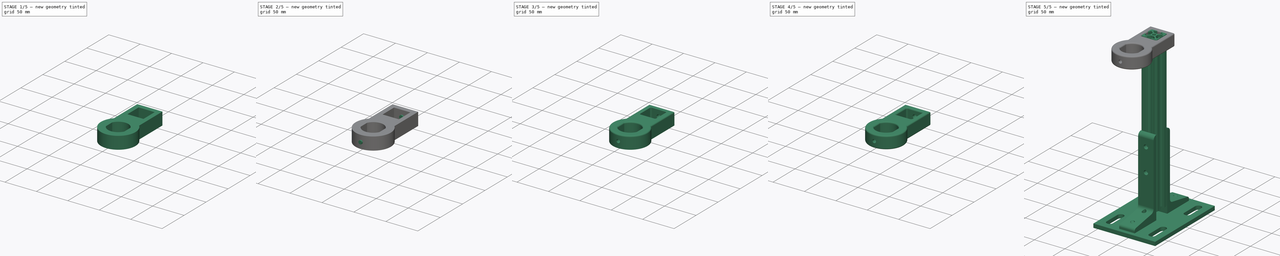
[diagram: build sequence overview — one tinted view per stage of 5, left to right]
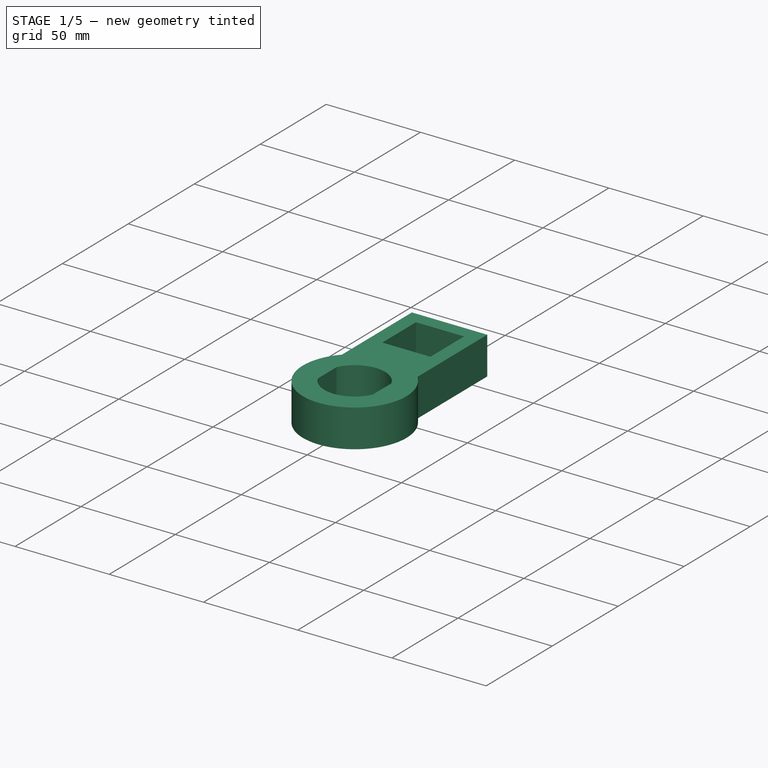
[diagram: stage 1 of 5 — iso view after this stage's code; geometry added in this stage tinted green]
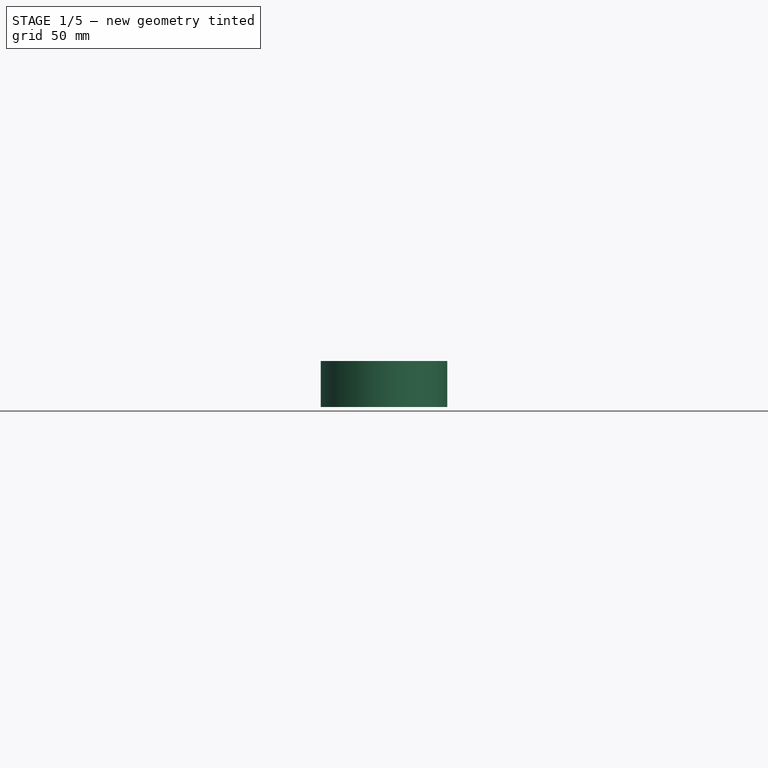
[diagram: stage 1 of 5 — front view after this stage's code; geometry added in this stage tinted green]
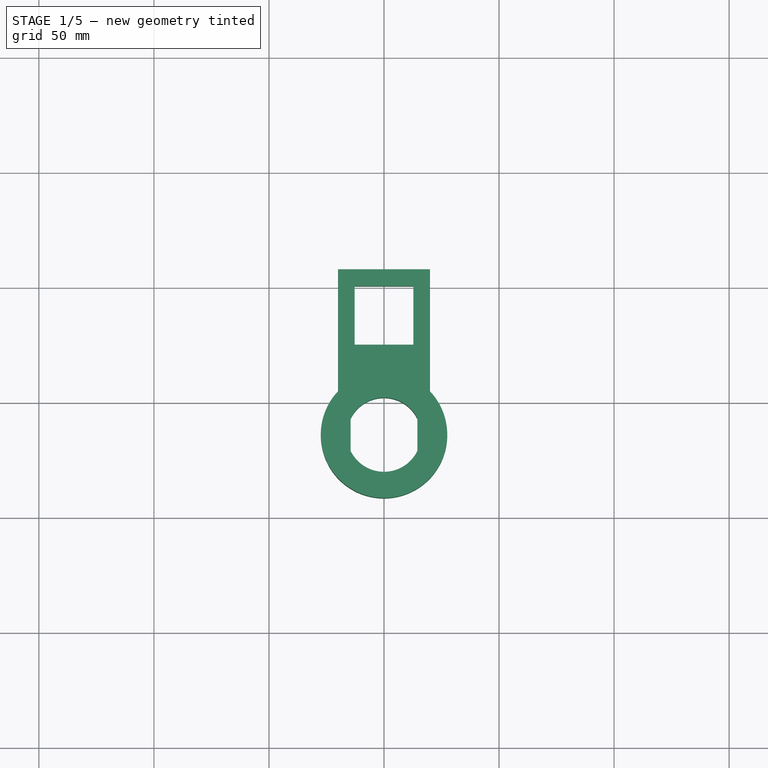
[diagram: stage 1 of 5 — top view after this stage's code; geometry added in this stage tinted green]
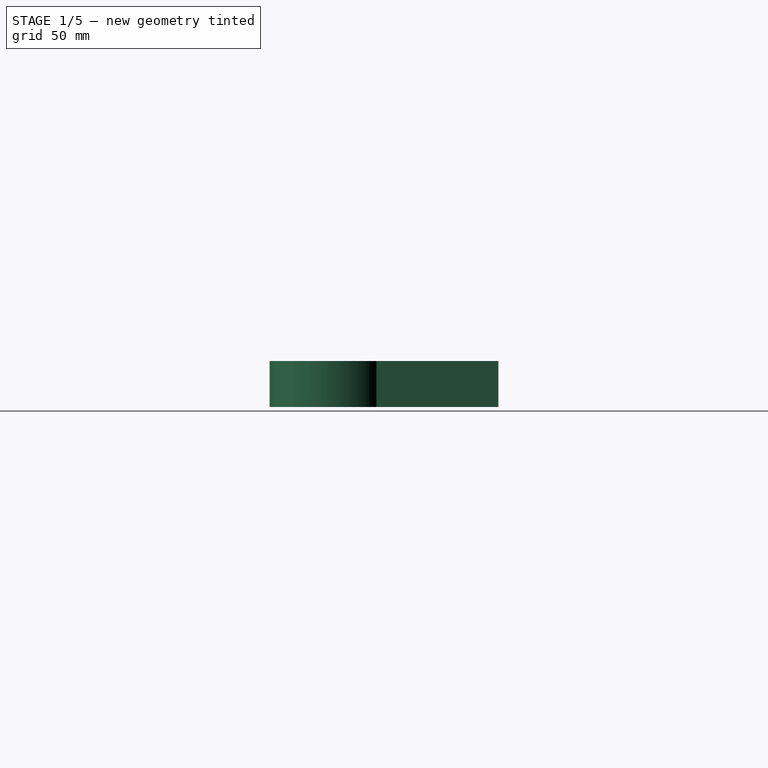
[diagram: stage 1 of 5 — right view after this stage's code; geometry added in this stage tinted green]
FCSTD DOCUMENT  (FreeCAD 0.20R29410 (Git))
Label: airMarHolderVertical
License: All rights reserved
LicenseURL: http://en.wikipedia.org/wiki/All_rights_reserved
objects: Part::Fillet×8, Part::MultiFuse×3, Part::Feature×3, Sketcher::SketchObject×2, Part::Extrusion×2, Part::Cylinder×2, Part::Cut×1
note: 21 computed .brp shape members not serialized (recipe doc carries the construction recipe); baked Part::Feature solids carry a one-line shape summary decoded from their .brp

FEATURE [Sketcher::SketchObject] Sketch004
  FullyConstrained = true
  Placement = pos=(0,0,23.8) rot=(0,0,1;0rad)
  sketch-geometry (5):
    g0: Circle CenterX=0 CenterY=-36 CenterZ=0 NormalX=0 NormalY=0 NormalZ=1 AngleXU=0 Radius=27.5
    g1: LineSegment StartX=-14.5264 StartY=-29 StartZ=0 EndX=-14.5264 EndY=-43 EndZ=0
    g2: LineSegment StartX=14.5264 StartY=-29 StartZ=0 EndX=14.5264 EndY=-43 EndZ=0
    g3: ArcOfCircle CenterX=0 CenterY=-36 CenterZ=0 NormalX=0 NormalY=0 NormalZ=1 AngleXU=0 Radius=16.125 StartAngle=0.449048 EndAngle=2.69254
    g4: ArcOfCircle CenterX=0 CenterY=-36 CenterZ=0 NormalX=0 NormalY=0 NormalZ=1 AngleXU=0 Radius=16.125 StartAngle=3.59064 EndAngle=5.83414
  constraints (15):
    c: Vertical(g1)
    c: Vertical(g2)
    c: Horizontal(g2,g1)
    c: Coincident(g3,g0)
    c: Coincident(g3,g1)
    c: Coincident(g4,g0)
    c: Coincident(g4,g1)
    c: Coincident(g2,g4)
    c: Coincident(g2,g3)
    c: DistanceY(g0,g1) = 7
    c: Diameter(g3) = 32.25
    c: DistanceX(g0) = 0
    c: DistanceY(g1,g1) = 14
    c: Diameter(g0) = 55
    c: DistanceY(g0) = -36
FEATURE [Part::Extrusion] Extrude005
  Base = -> Sketch004
  Dir = (0,0,1)
  DirMode = 2
  FaceMakerClass = Part::FaceMakerBullseye
  LengthFwd = 20
  LengthRev = 0
  Placement = pos=(0,-128,-78.8) rot=(0,0,1;0rad)
  Solid = true
  Symmetric = false
FEATURE [Sketcher::SketchObject] Sketch005
  FullyConstrained = true
  Placement = pos=(0,0,0) rot=(1,0,0;1.5708rad)
  sketch-geometry (8):
    g0: LineSegment StartX=-20 StartY=-106.4 StartZ=0 EndX=-20 EndY=-161.4 EndZ=0
    g1: LineSegment StartX=-20 StartY=-161.4 StartZ=0 EndX=20 EndY=-161.4 EndZ=0
    g2: LineSegment StartX=20 StartY=-161.4 StartZ=0 EndX=20 EndY=-106.4 EndZ=0
    g3: LineSegment StartX=-20 StartY=-106.4 StartZ=0 EndX=20 EndY=-106.4 EndZ=0
    g4: LineSegment StartX=-12.75 StartY=-128.65 StartZ=0 EndX=12.75 EndY=-128.65 EndZ=0
    g5: LineSegment StartX=12.75 StartY=-128.65 StartZ=0 EndX=12.75 EndY=-154.15 EndZ=0
    g6: LineSegment StartX=12.75 StartY=-154.15 StartZ=0 EndX=-12.75 EndY=-154.15 EndZ=0
    g7: LineSegment StartX=-12.75 StartY=-154.15 StartZ=0 EndX=-12.75 EndY=-128.65 EndZ=0
  constraints (24):
    c: Vertical(g0)
    c: Coincident(g1,g0)
    c: Horizontal(g1)
    c: Coincident(g2,g1)
    c: Vertical(g2)
    c: Coincident(g3,g0)
    c: Horizontal(g3)
    c: DistanceX(g0) = -20
    c: DistanceX(g1) = 20
    c: DistanceY(g0) = -161.4
    c: DistanceY(g0,g0) = 55
    c: Coincident(g4,g5)
    c: Coincident(g5,g6)
    c: Coincident(g6,g7)
    c: Coincident(g7,g4)
    c: Horizontal(g4)
    c: Horizontal(g6)
    c: Vertical(g5)
    c: Vertical(g7)
    c: DistanceX(g0,g6) = 7.25
    c: DistanceX(g5,g1) = 7.25
    c: DistanceY(g0,g6) = 7.25
    c: DistanceY(g7,g7) = 25.5
    c: Coincident(g2,g3)
FEATURE [Part::Extrusion] Extrude006
  Base = -> Sketch005
  Dir = (0,-1,2e-16)
  DirMode = 2
  FaceMakerClass = Part::FaceMakerBullseye
  LengthFwd = 20
  LengthRev = 0
  Placement = pos=(0,-253.5,-35) rot=(1,0,0;1.5708rad)
  Solid = true
  Symmetric = false
FEATURE [Part::MultiFuse] Fusion017
  Shapes = -> [Extrude006,Extrude005]
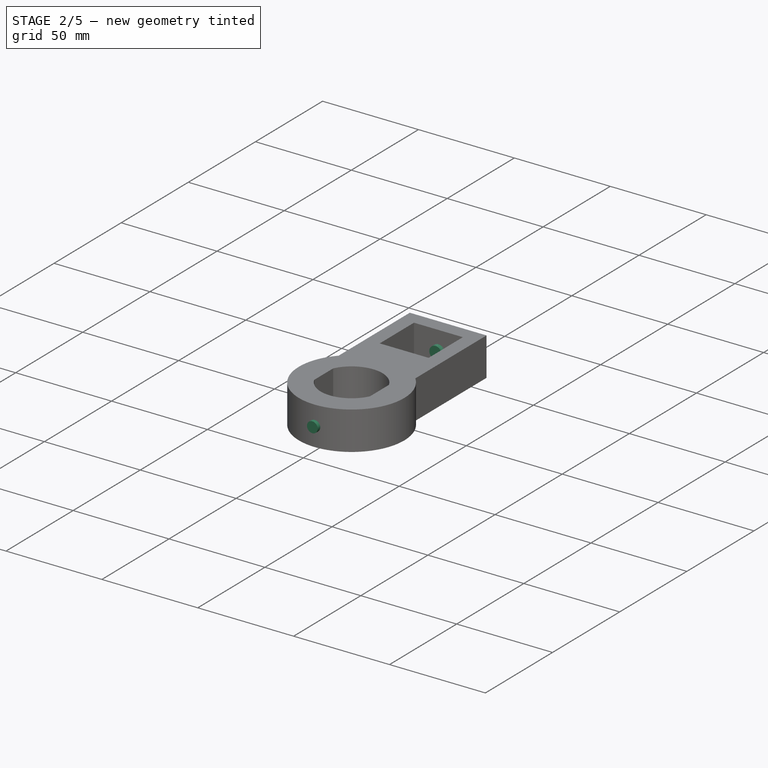
[diagram: stage 2 of 5 — iso view after this stage's code; geometry added in this stage tinted green]
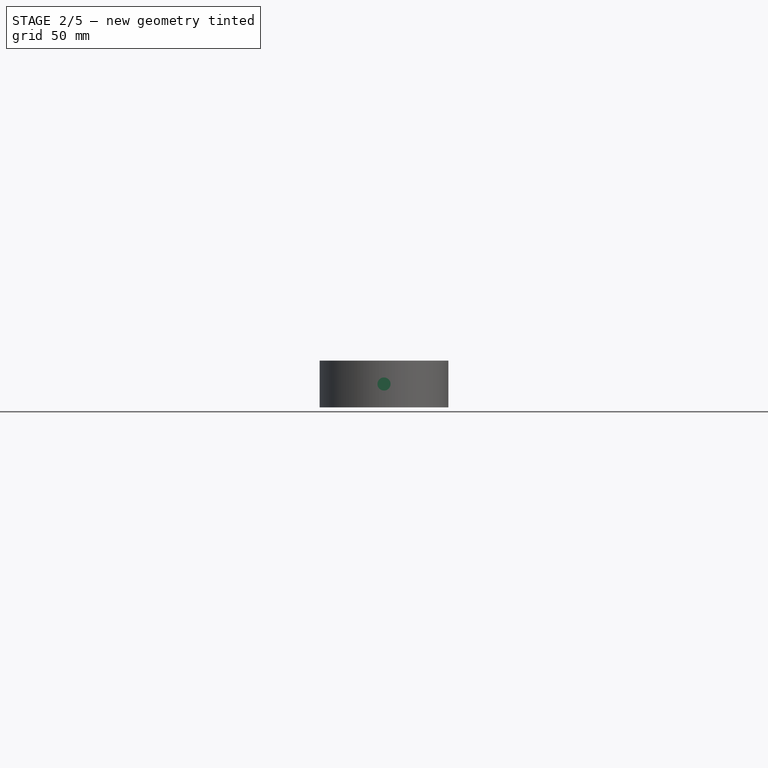
[diagram: stage 2 of 5 — front view after this stage's code; geometry added in this stage tinted green]
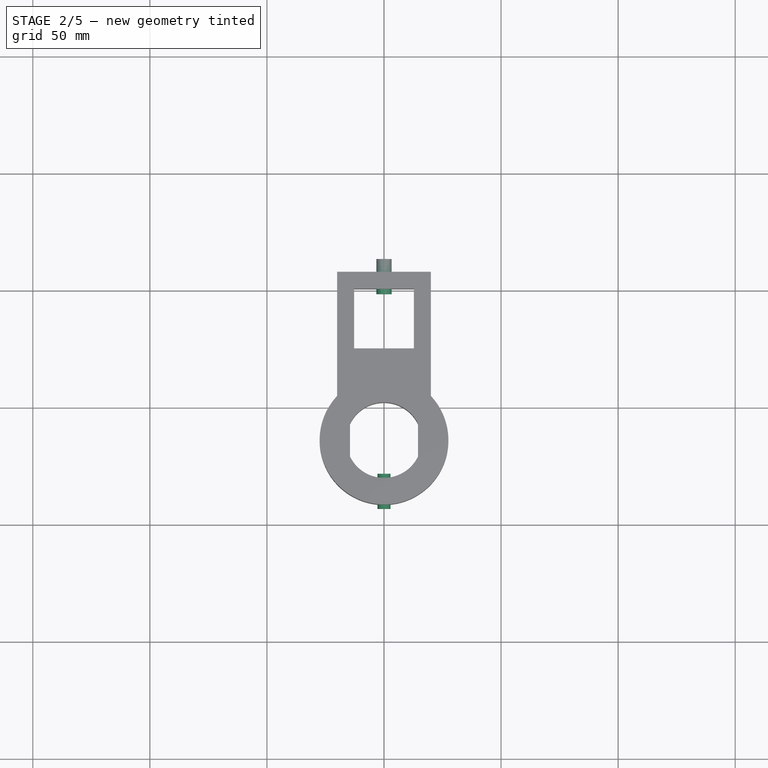
[diagram: stage 2 of 5 — top view after this stage's code; geometry added in this stage tinted green]
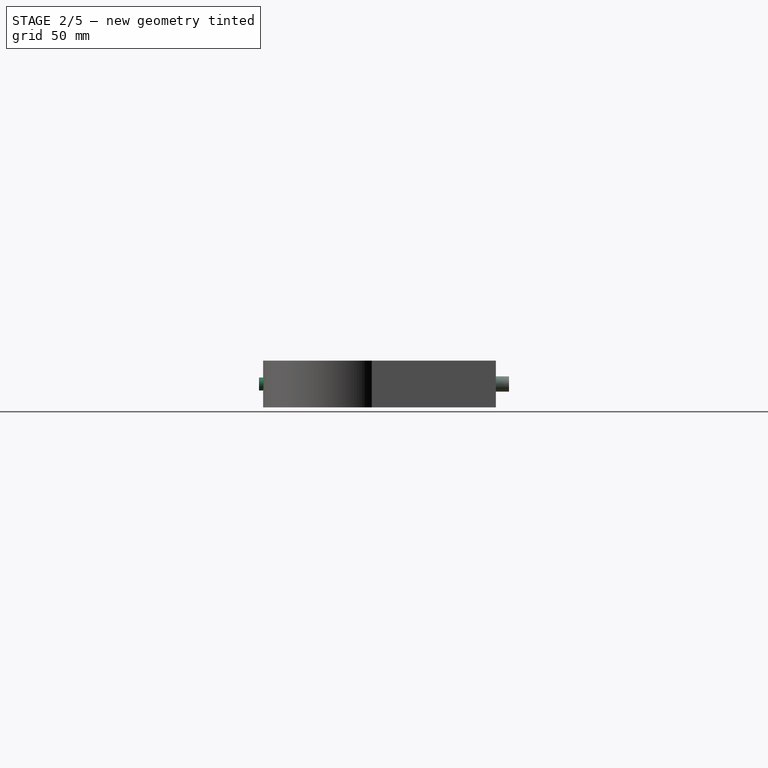
[diagram: stage 2 of 5 — right view after this stage's code; geometry added in this stage tinted green]
FEATURE [Part::Cylinder] Cylinder041  label="m6Screw"
  Angle = 360
  AttacherType = Attacher::AttachEngine3D
  FirstAngle = 0
  Height = 15
  Placement = pos=(0,-101.5,-45) rot=(1,0,0;4.71239rad)
  Radius = 3.25
  SecondAngle = 0
FEATURE [Part::Cylinder] Cylinder042  label="m4HeatSetCut001"
  Angle = 360
  AttacherType = Attacher::AttachEngine3D
  FirstAngle = 0
  Height = 15
  Placement = pos=(0,-178.25,-45) rot=(1,0,0;1.5708rad)
  Radius = 2.8
  SecondAngle = 0
FEATURE [Part::MultiFuse] Fusion016
  Shapes = -> [Cylinder041,Cylinder042]
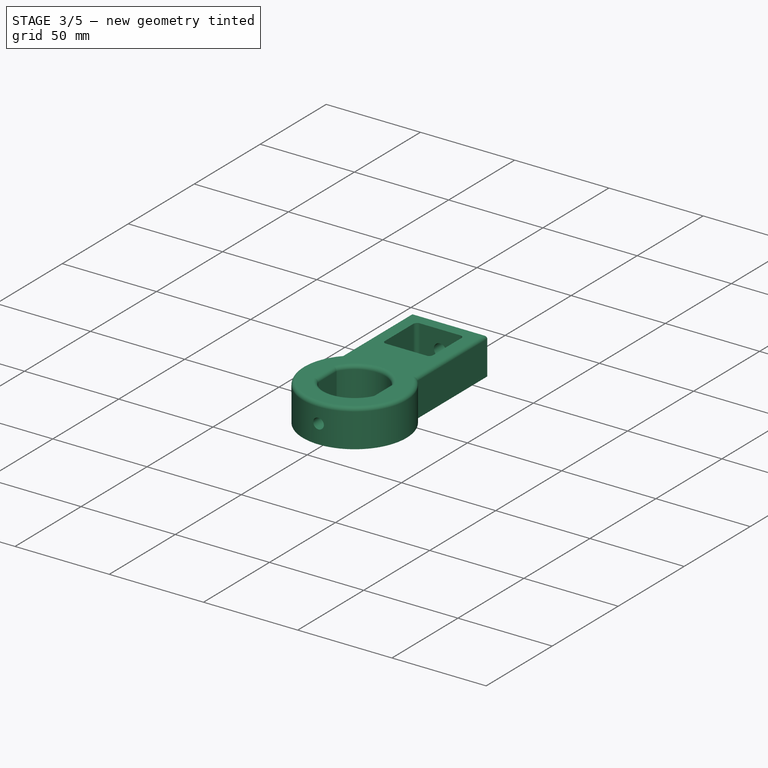
[diagram: stage 3 of 5 — iso view after this stage's code; geometry added in this stage tinted green]
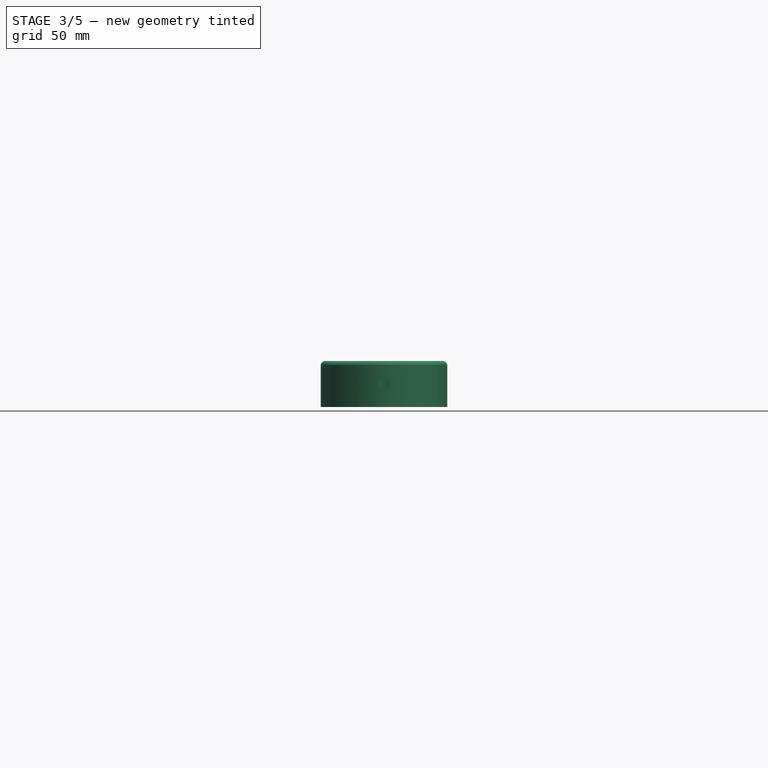
[diagram: stage 3 of 5 — front view after this stage's code; geometry added in this stage tinted green]
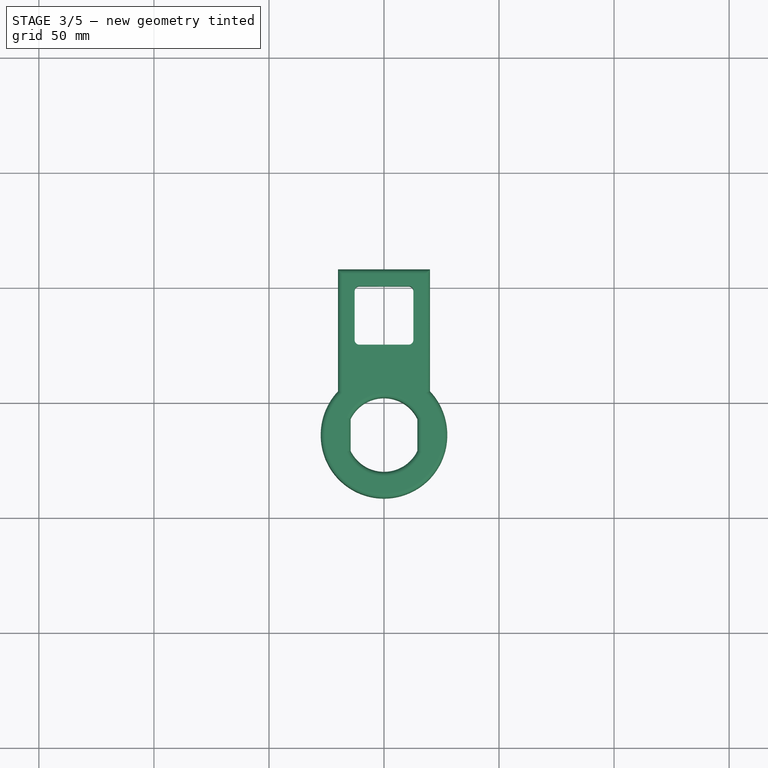
[diagram: stage 3 of 5 — top view after this stage's code; geometry added in this stage tinted green]
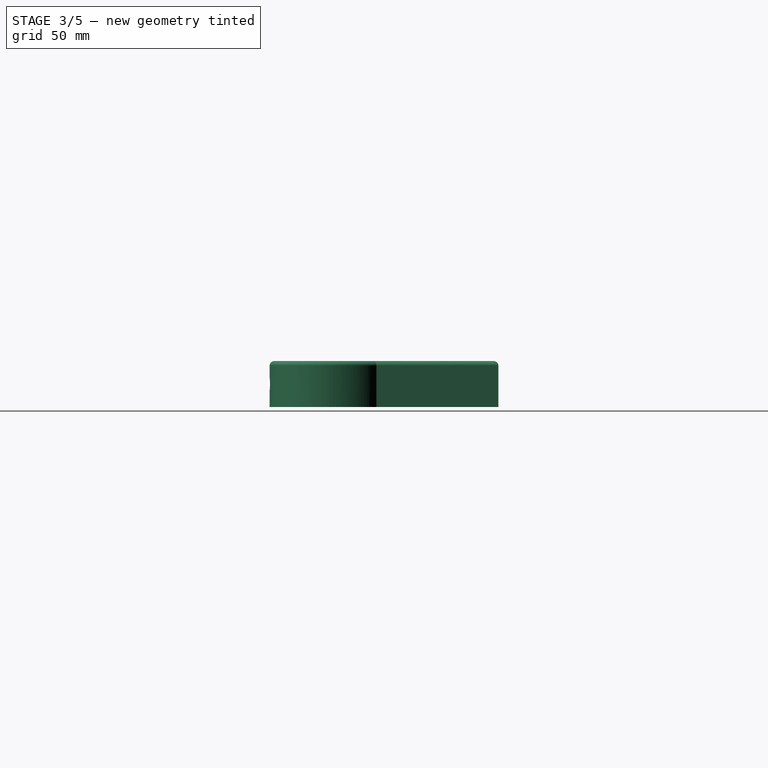
[diagram: stage 3 of 5 — right view after this stage's code; geometry added in this stage tinted green]
FEATURE [Part::Cut] Cut002  label="airMarHolder"
  Base = -> Fusion017
  Placement = pos=(0,0,79) rot=(0,0,1;0rad)
  Tool = -> Fusion016
FEATURE [Part::Fillet] Fillet
  Base = -> Cut002
  Edges = 4 edges r=2: [Edge39,Edge40,Edge42,Edge44]
FEATURE [Part::Fillet] Fillet001
  Base = -> Fillet
  Edges = 5 edges r=2: [Edge9,Edge10,Edge11,Edge45,Edge48]
FEATURE [Part::Fillet] Fillet002
  Base = -> Fillet001
  Edges = 4 edges r=2: [Edge52,Edge53,Edge54,Edge55]
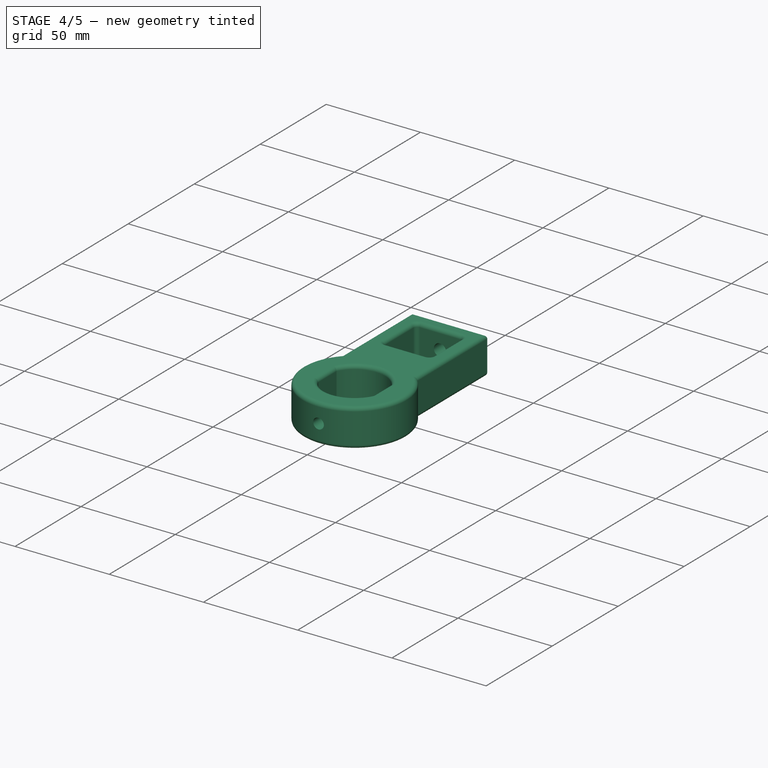
[diagram: stage 4 of 5 — iso view after this stage's code; geometry added in this stage tinted green]
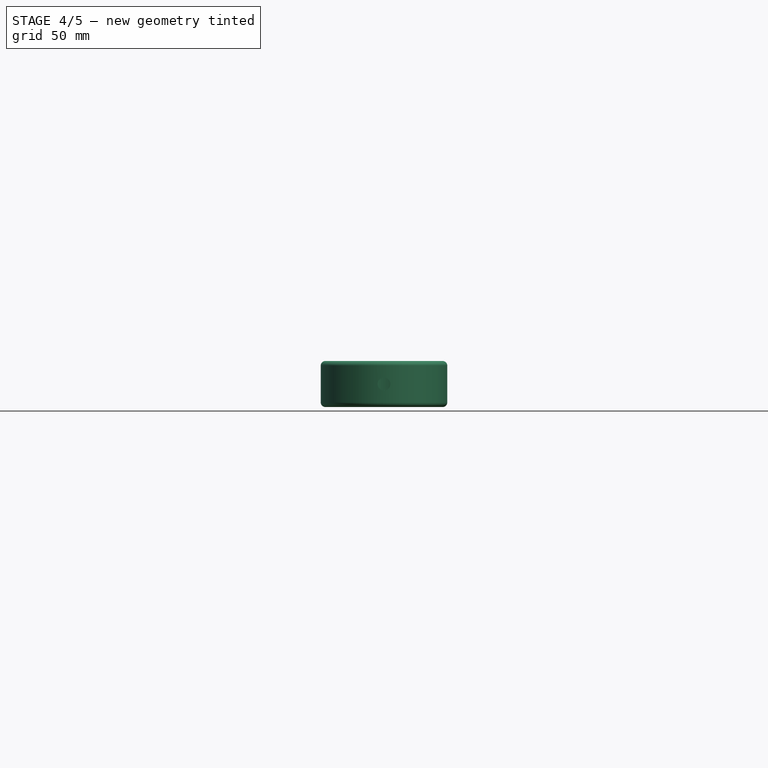
[diagram: stage 4 of 5 — front view after this stage's code; geometry added in this stage tinted green]
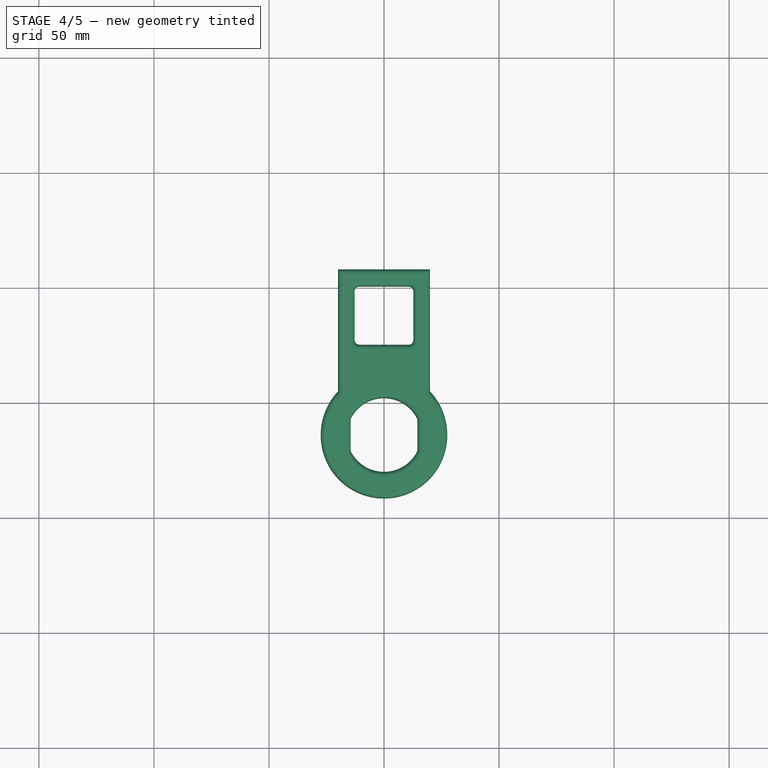
[diagram: stage 4 of 5 — top view after this stage's code; geometry added in this stage tinted green]
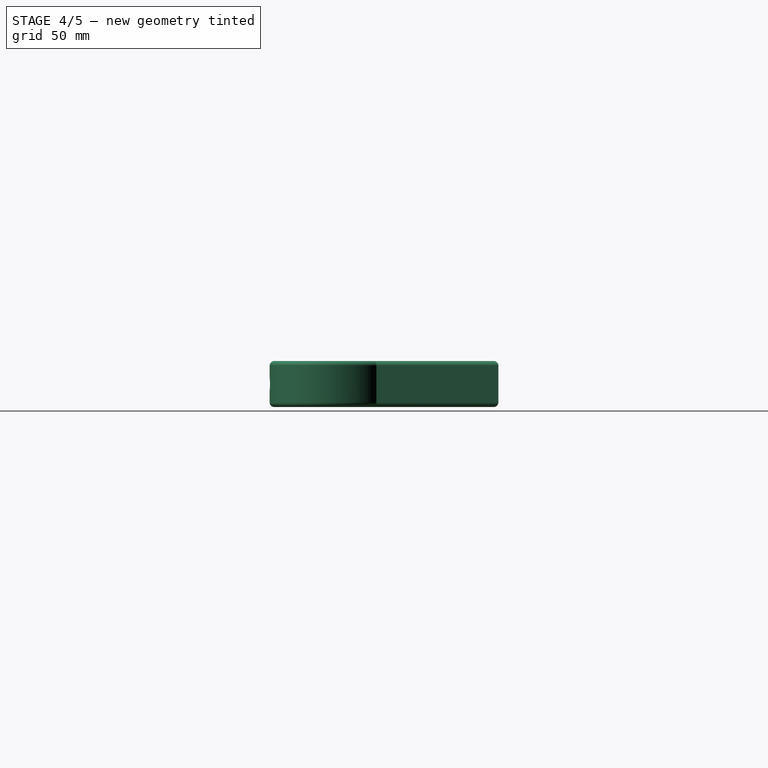
[diagram: stage 4 of 5 — right view after this stage's code; geometry added in this stage tinted green]
FEATURE [Part::Fillet] Fillet003
  Base = -> Fillet002
  Edges = 5 edges r=2: [Edge59,Edge64,Edge67,Edge89,Edge100]
FEATURE [Part::Fillet] Fillet004
  Base = -> Fillet003
  Edges = 4 edges r=1: [Edge44,Edge45,Edge46,Edge47]
FEATURE [Part::Fillet] Fillet005
  Base = -> Fillet004
  Edges = 4 edges r=2: [Edge82,Edge87,Edge91,Edge96]
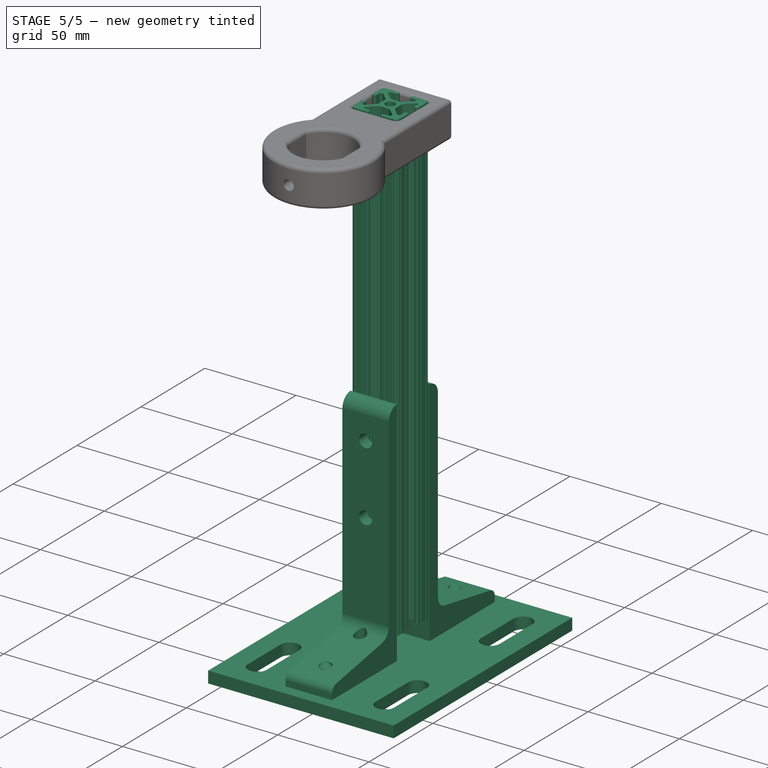
[diagram: stage 5 of 5 — iso view after this stage's code; geometry added in this stage tinted green]
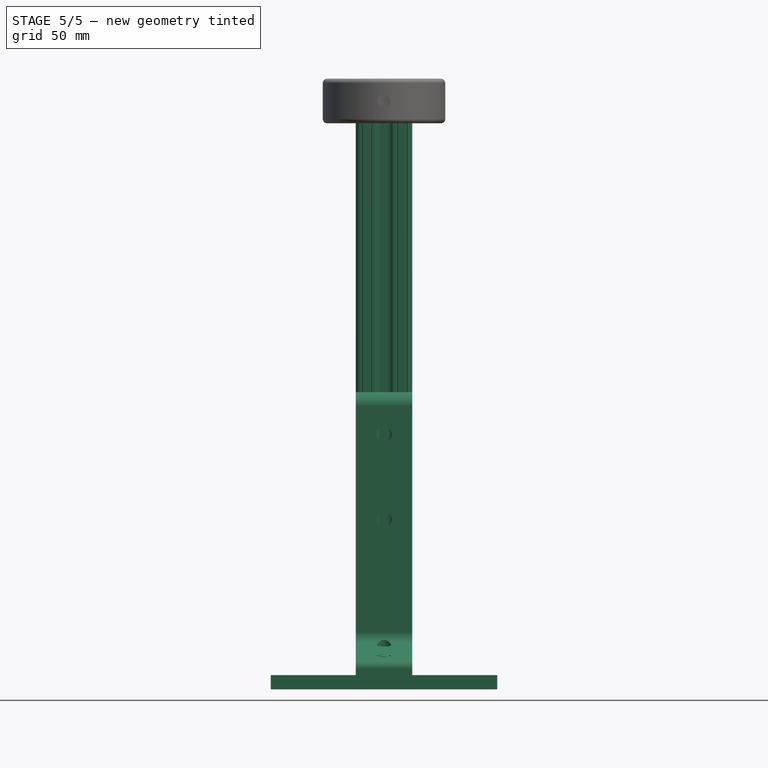
[diagram: stage 5 of 5 — front view after this stage's code; geometry added in this stage tinted green]
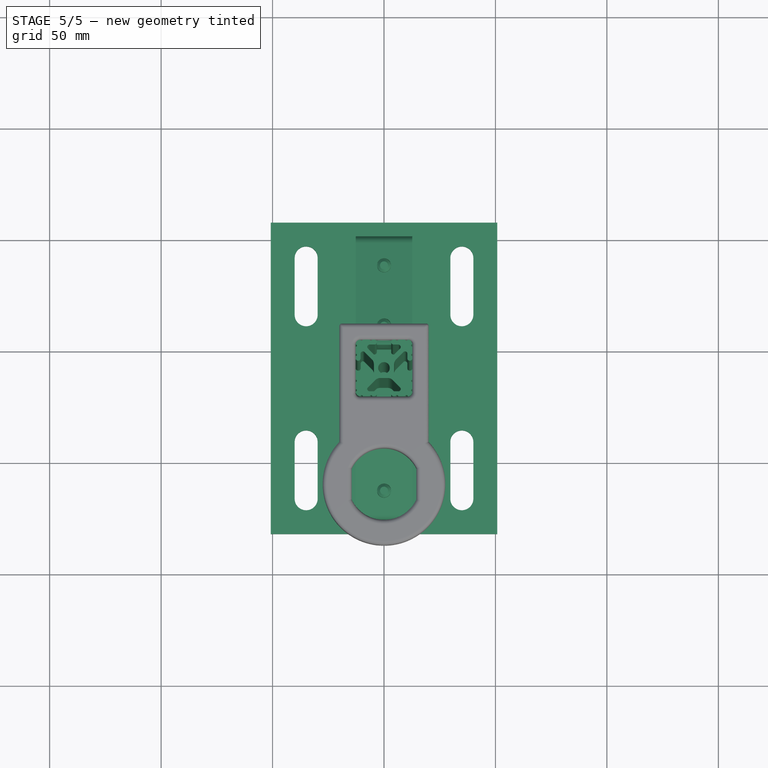
[diagram: stage 5 of 5 — top view after this stage's code; geometry added in this stage tinted green]
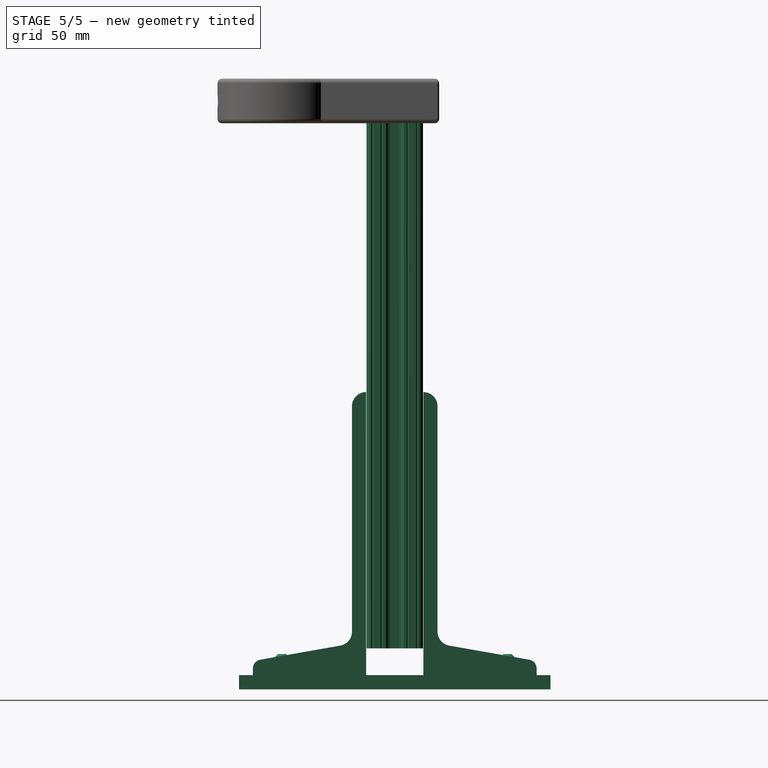
[diagram: stage 5 of 5 — right view after this stage's code; geometry added in this stage tinted green]
FEATURE [Part::Feature] Part__Feature022  label="3136N138_T-Slotted Framing"
  Placement = pos=(0,200.3,0) rot=(0,0,1;0rad)
  shape: bbox 101.6 x 133.4 x 139.7 mm, 136 faces (baked)
FEATURE [Part::Feature] Part__Feature023  label="47065T801_T-Slotted Framing"
  Placement = pos=(0,288.5,0) rot=(-1,0,0;1.5708rad)
  shape: bbox 25.4 x 152.4 x 25.4 mm, 108 faces (baked)
FEATURE [Part::Feature] Part__Feature024  label="47065T801_T-Slotted Framing001"
  Placement = pos=(0,391.5,0) rot=(-1,0,0;1.5708rad)
  shape: bbox 25.4 x 152.4 x 25.4 mm, 108 faces (baked)
FEATURE [Part::MultiFuse] Fusion008  label="framingSupport"
  Placement = pos=(0,-112,-423.91) rot=(0,0.707107,0.707107;3.14159rad)
  Shapes = -> [Part__Feature024,Part__Feature022,Part__Feature023]
FEATURE [Part::Fillet] Fillet006
  Base = -> Fillet005
  Edges = 4 edges r=2: [Edge2,Edge15,Edge17,Edge19]
FEATURE [Part::Fillet] Fillet007
  Base = -> Fillet006
  Edges = 2 edges r=1: [Edge115,Edge116]
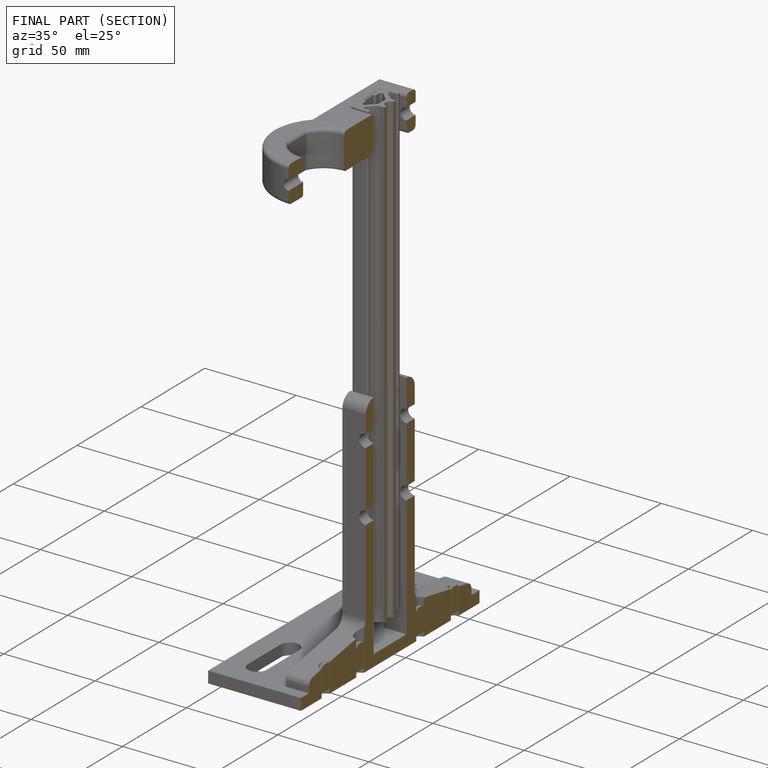
[diagram: finished part — half-section view (interior)]
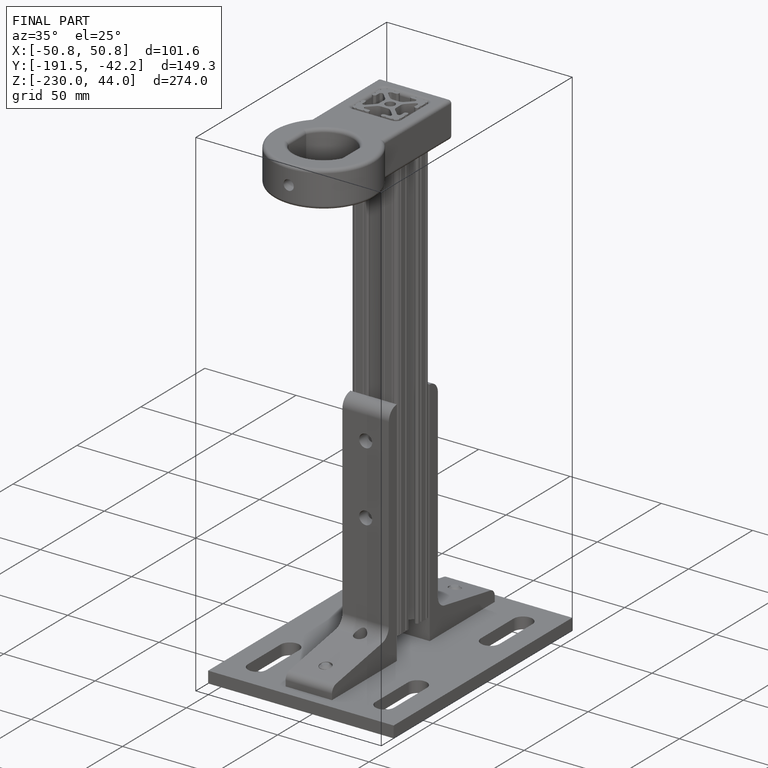
[diagram: finished part — iso view with bounding-box wireframe]
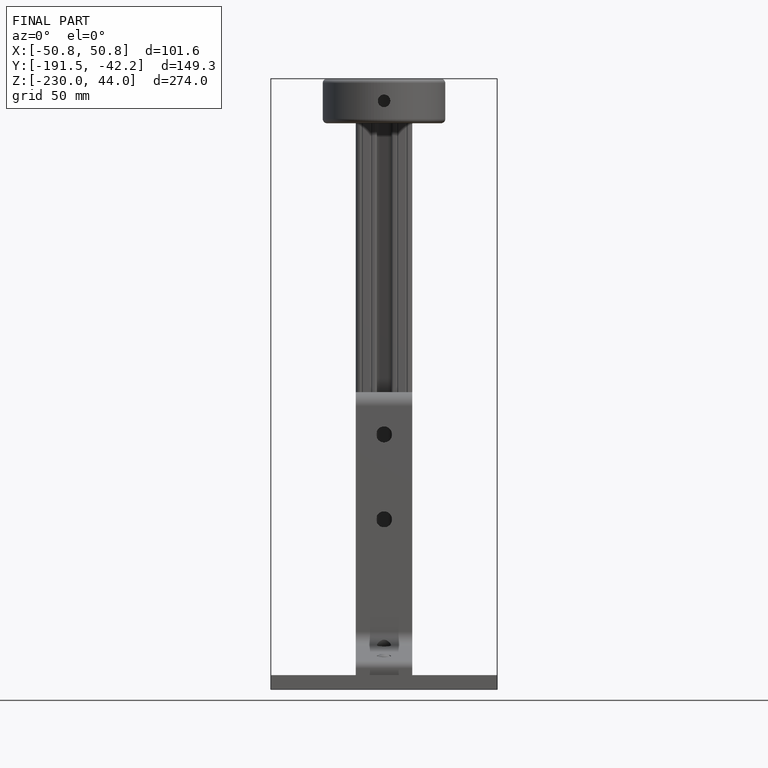
[diagram: finished part — front view with bounding-box wireframe]
